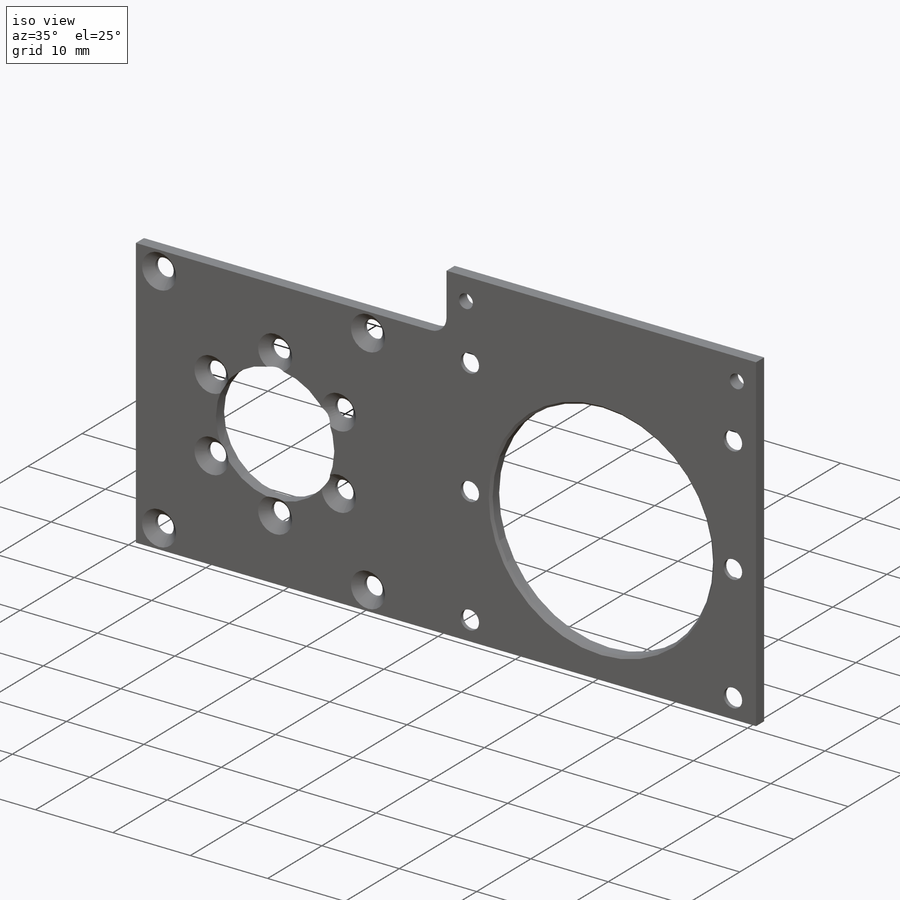
[diagram: iso view]
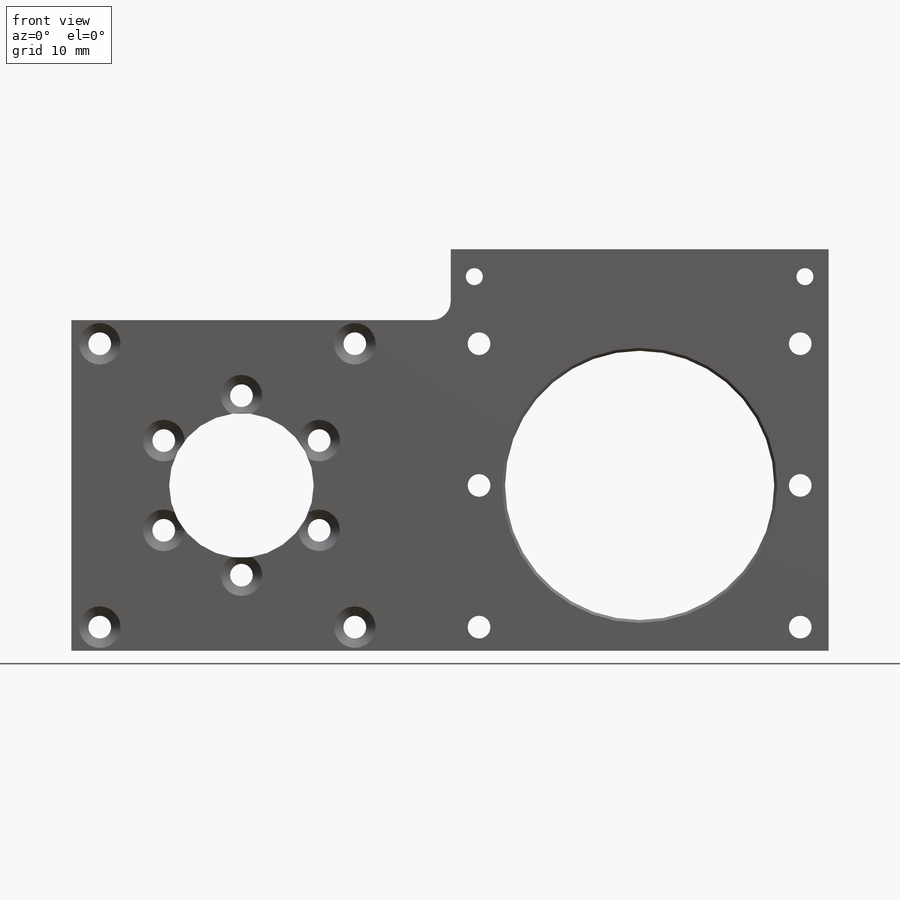
[diagram: front view]
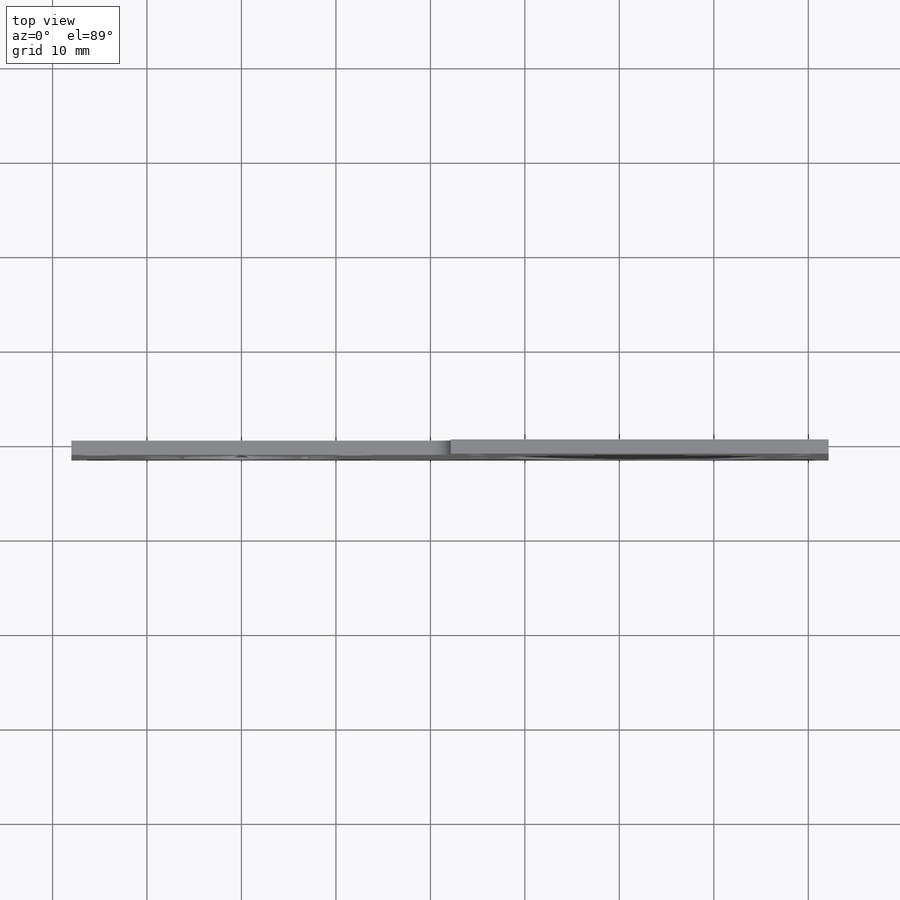
[diagram: top view]
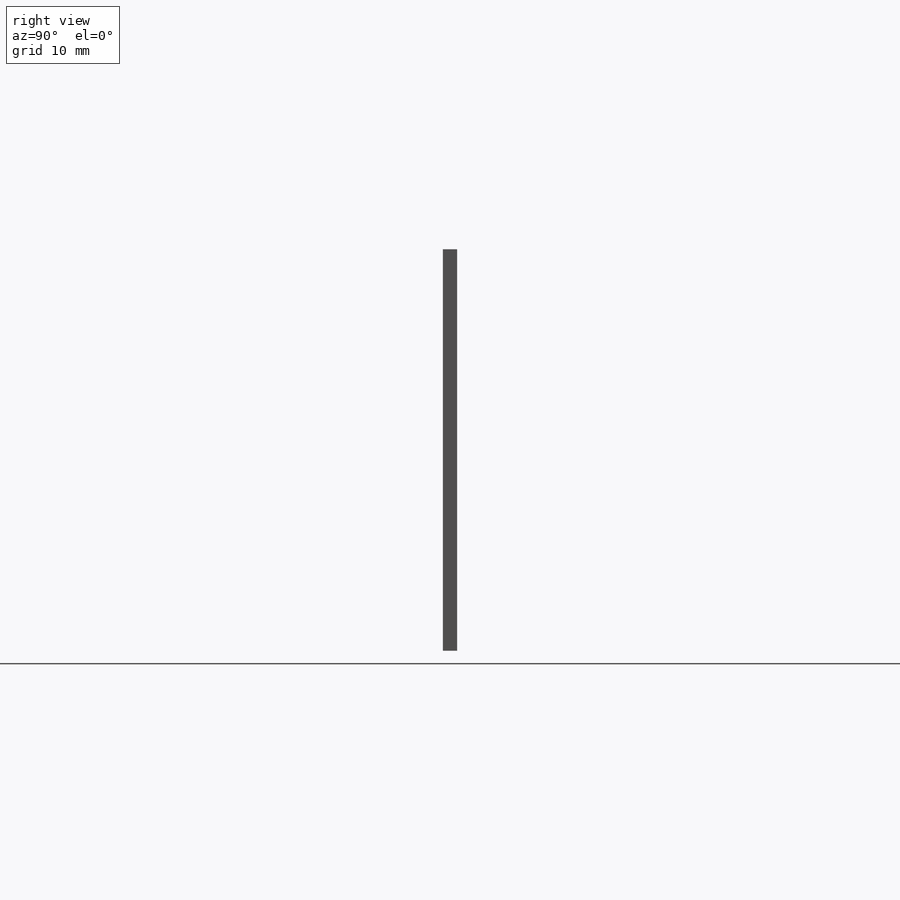
[diagram: right view]
SOLIDWORKS PART (.sldprt)
format: sldprt  version: not decoded by parser v0  size: 616,448 bytes
history: native  units: mm
features: sketch x20, hole x6, extrude x4, cut_extrude x4, fillet x2, chamfer x2, material x1 (+12 scaffold rows collapsed)
feature tree (51):
  scaffold x12  (default folders/planes/origin — collapsed)
  material  "Hexcel AS4C (3000 Filaments)"
  sketch  "Sketch1"  dims[D1=118.4mm D2=35.0mm]
  extrude  "Boss-Extrude1"  Depth=1.5mm
  sketch  "Sketch2"  dims[D1=15.3mm]
  cut_extrude  "Cut-Extrude1"  [1 undecoded]
  sketch  "Sketch3"  dims[D1=28.5mm D2=42.15mm]
  cut_extrude  "Cut-Extrude2"  [1 undecoded]
  sketch  "Sketch4"  dims[D1=18.0mm]
  cut_extrude  "Cut-Extrude3"  Depth=10mm
  sketch  "Sketch11"
  extrude  "Boss-Extrude2"  Depth=4.5mm
  hole  "M2 Clearance Hole1"  Diameter=2.4mm Depth=16mm
  sketch  "Sketch8"  dims[c1.D1=30.0mm c1.D2=42.0mm c2.D1=30.0mm c2.D2=3.0mm c2.D3=34.0mm c2.D4=27.0mm]
  sketch  "Sketch7"  dims[hole-wizard template sketch: 47 standard entries collapsed; hole parameters kept: c15.Hole Depth=16.0mm c15.D3=~14.816244mm c15.Drill Angle=118.0deg]
  sketch  "Sketch12"  dims[D1=20.0mm D2=10.0mm]
  cut_extrude  "Cut-Extrude4"  Depth=10mm
  hole  "CSK for M2 Countersunk Flat Head Screw3"  Diameter=2.4mm Depth=1.5mm
  sketch  "Sketch14"
  sketch  "Sketch13"  dims[hole-wizard template sketch: 55 standard entries collapsed; hole parameters kept: c17.Thru Hole Depth=1.5mm c17.Near C'Sink Dia.=4.4mm c17.D4=~3.666174mm c17.Near C'Sink Angle=90.0deg]
  sketch  "Sketch16"  dims[D1=30.0mm]
  extrude  "Boss-Extrude3"  Depth=7.5mm
  hole  "Ø3.0 (3) Diameter Hole1"  Diameter=3mm Depth=8mm
  sketch  "Sketch18"  dims[D1=38.2mm]
  sketch  "Sketch17"  dims[hole-wizard template sketch: 47 standard entries collapsed; hole parameters kept: c15.Hole Depth=8.0mm c15.D3=~14.816244mm c15.Drill Angle=118.0deg]
  hole  "M1.6 Clearance Hole1"  Diameter=1.8mm Depth=8mm
  sketch  "Sketch20"  dims[D1=6.0mm D2=35.0mm D3=44.2mm]
  sketch  "Sketch19"  dims[hole-wizard template sketch: 47 standard entries collapsed; hole parameters kept: c15.Hole Depth=8.0mm c15.D3=~14.816244mm c15.Drill Angle=118.0deg]
  fillet  "Fillet1"  Radius=2mm
  hole  "CSK for M2 Countersunk Flat Head Screw2"  Diameter=2.4mm Depth=1.5mm
  sketch  "Sketch10"  dims[D1=19.0mm D2=6.0]
  sketch  "Sketch9"  dims[hole-wizard template sketch: 55 standard entries collapsed; hole parameters kept: c17.Thru Hole Depth=1.5mm c17.Near C'Sink Dia.=4.4mm c17.D4=~3.666174mm c17.Near C'Sink Angle=90.0deg]
  chamfer  "Chamfer1"  Distance=0.3mm Angle=45deg
  sketch  "Sketch21"  dims[D1=95.15mm D2=12.0mm]
  extrude  "Boss-Extrude4"  [1 undecoded]
  hole  "CSK for M2 Countersunk Flat Head Screw4"  Diameter=2.4mm Depth=1.689952mm
  sketch  "Sketch23"  dims[D1=3.0mm D2=6.5mm D3=6.0mm]
  sketch  "Sketch22"  dims[hole-wizard template sketch: 55 standard entries collapsed; hole parameters kept: c17.Thru Hole Depth=~1.689952mm c17.Near C'Sink Dia.=4.4mm c17.D4=~3.666174mm c17.Near C'Sink Angle=90.0deg]
  chamfer  "Chamfer3"  Distance=2mm Angle=45deg
  fillet  "Fillet3"  Radius=2mm
decode coverage: 33 of 38 modeling features carry decoded parameters
note: ~ marks probable driven/reference dimensions
note: 3 parameter values undecoded
summary: Diameter pulled from absorbed wizard sketch | no parameter record found for 3 features
note: suppression state not decoded; provenance and decode notes live in map.json
